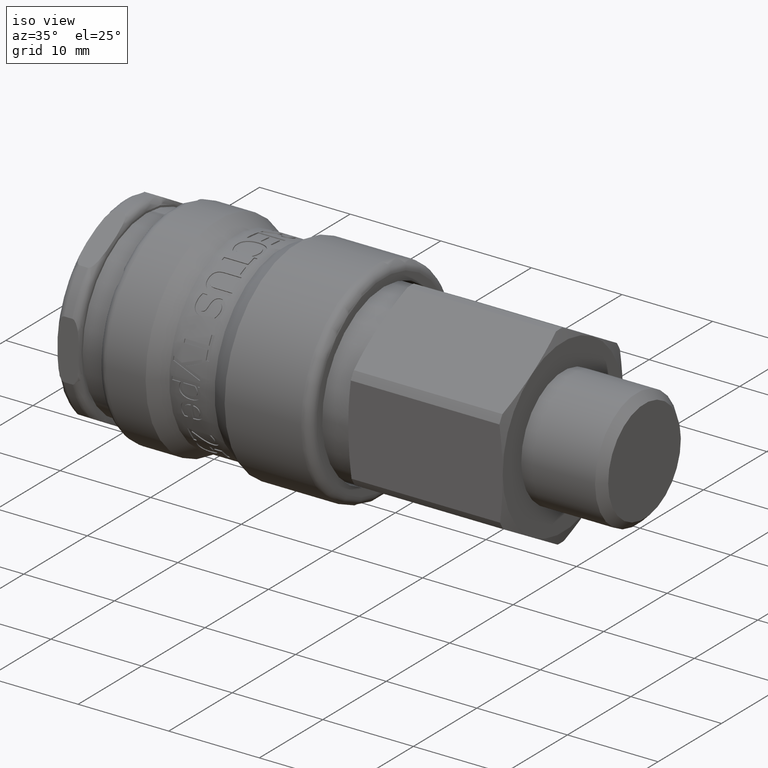
[diagram: clean part render]
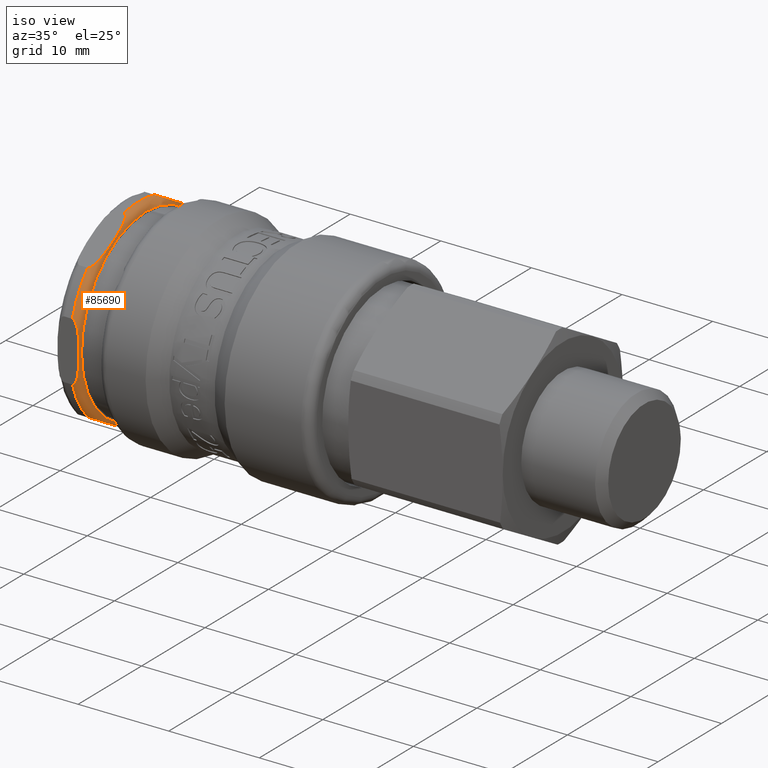
[diagram: same view with one face highlighted and labeled with its STEP entity id]
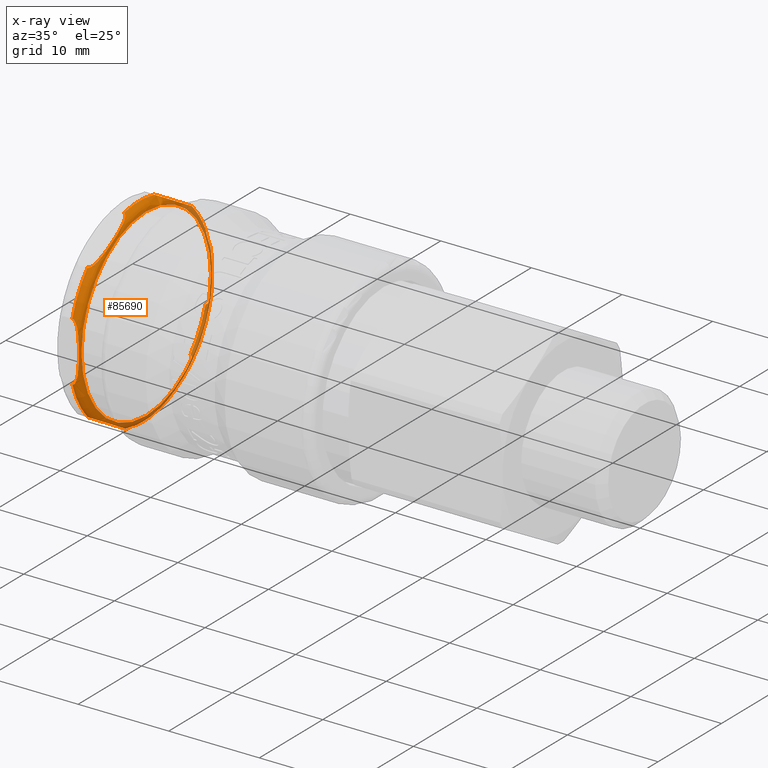
[diagram: x-ray of the same camera — body ghosted, the highlighted face saturated]
A machine part, iso view. The second image highlights one B-rep face of the part: STEP entity #85690.
The next image is the same camera in x-ray: the body ghosted, the highlighted face saturated — about 25% of this face is hidden behind the body in this view.
In plain terms, the highlighted toroidal blend (fillet) surface has major radius 10.2 mm and minor (blend) radius 0.8 mm.
Its self-contained STEP definition (entity closure, byte-faithful):
#85016=CARTESIAN_POINT('',(2.499999999999999,10.199999999999999,-2.498279E-015));
#85017=VERTEX_POINT('',#85016);
#85018=CARTESIAN_POINT('',(2.499999999999999,0.0,0.0));
#85019=DIRECTION('',(-1.0,0.0,0.0));
#85020=DIRECTION('',(0.0,-1.0,0.0));
#85021=AXIS2_PLACEMENT_3D('',#85018,#85019,#85020);
#85022=CIRCLE('',#85021,10.199999999999999);
#85023=EDGE_CURVE('',#85017,#85017,#85022,.T.);
#85038=CARTESIAN_POINT('',(1.699999999999999,2.410545827099858,-10.732626370812106));
#85039=VERTEX_POINT('',#85038);
#85046=CARTESIAN_POINT('',(1.699999999999999,-2.410545827099867,-10.732626370812106));
#85047=VERTEX_POINT('',#85046);
#85048=CARTESIAN_POINT('',(1.699999999999999,0.0,0.0));
#85049=DIRECTION('',(1.0,0.0,0.0));
#85050=DIRECTION('',(0.0,-1.0,0.0));
#85051=AXIS2_PLACEMENT_3D('',#85048,#85049,#85050);
#85052=CIRCLE('',#85051,11.0);
#85053=EDGE_CURVE('',#85047,#85039,#85052,.T.);
#85112=CARTESIAN_POINT('',(1.699999999999999,10.500000000000000,3.278719262151002));
#85113=VERTEX_POINT('',#85112);
#85120=CARTESIAN_POINT('',(1.699999999999999,10.500000000000000,-3.278719262151002));
#85121=VERTEX_POINT('',#85120);
#85122=CARTESIAN_POINT('',(1.699999999999999,10.500000000000000,-3.278719262151002));
#85123=CARTESIAN_POINT('',(1.722104467915269,10.500000000000000,-3.278719262151002));
#85124=CARTESIAN_POINT('',(1.748334382194516,10.500000000000000,-3.274771300712473));
#85125=CARTESIAN_POINT('',(1.793965826045355,10.500000000000000,-3.261374599091508));
#85126=CARTESIAN_POINT('',(1.821634946150615,10.500000000000000,-3.248439310874967));
#85127=CARTESIAN_POINT('',(1.910997444381833,10.500000000000000,-3.193187925023128));
#85128=CARTESIAN_POINT('',(1.972605022011147,10.500000000000000,-3.120173886764250));
#85129=CARTESIAN_POINT('',(2.103238507919768,10.500000000000000,-2.919047819138348));
#85130=CARTESIAN_POINT('',(2.169564088821498,10.500000000000000,-2.738591631614820));
#85131=CARTESIAN_POINT('',(2.325754557692284,10.500000000000000,-2.191493105213070));
#85132=CARTESIAN_POINT('',(2.373967945911439,10.499999999999998,-1.749150668261575));
#85133=CARTESIAN_POINT('',(2.433358688630658,10.499999999999998,-0.857870751619870));
#85134=CARTESIAN_POINT('',(2.441619848709565,10.500000000000000,-0.408741346034070));
#85135=CARTESIAN_POINT('',(2.441619848709565,10.500000000000000,0.408741346034070));
#85136=CARTESIAN_POINT('',(2.433358688630658,10.499999999999998,0.857870751619870));
#85137=CARTESIAN_POINT('',(2.373967945911439,10.499999999999998,1.749150668261575));
#85138=CARTESIAN_POINT('',(2.325754557692284,10.500000000000000,2.191493105213070));
#85139=CARTESIAN_POINT('',(2.169564088821498,10.500000000000000,2.738591631614820));
#85140=CARTESIAN_POINT('',(2.103238507919768,10.500000000000000,2.919047819138348));
#85141=CARTESIAN_POINT('',(1.972605022011147,10.500000000000000,3.120173886764250));
#85142=CARTESIAN_POINT('',(1.910997444381833,10.500000000000000,3.193187925023128));
#85143=CARTESIAN_POINT('',(1.821634946150615,10.500000000000000,3.248439310874967));
#85144=CARTESIAN_POINT('',(1.793965826045355,10.500000000000000,3.261374599091508));
#85145=CARTESIAN_POINT('',(1.748334382194516,10.500000000000000,3.274771300712473));
#85146=CARTESIAN_POINT('',(1.722104467915269,10.500000000000000,3.278719262151002));
#85147=CARTESIAN_POINT('',(1.699999999999999,10.500000000000000,3.278719262151002));
#85148=B_SPLINE_CURVE_WITH_KNOTS('',3,(#85122,#85123,#85124,#85125,#85126,#85127,#85128,#85129,#85130,#85131,#85132,#85133,#85134,#85135,#85136,#85137,#85138,#85139,#85140,#85141,#85142,#85143,#85144,#85145,#85146,#85147),.UNSPECIFIED.,.F.,.U.,(4,2,2,2,2,2,2,2,2,2,2,2,4),(0.331459991565857,0.338091331940438,0.345727192601835,0.369610428621349,0.417675175511273,0.540297579321494,0.662919983131715,0.785542386941936,0.908164790752157,0.956229537642080,0.980112773661594,0.987748634322991,0.994379974697572),.UNSPECIFIED.);
#85149=EDGE_CURVE('',#85121,#85113,#85148,.T.);
#85387=CARTESIAN_POINT('',(1.699999999999999,-8.089454172900142,-7.453907108661100));
#85388=VERTEX_POINT('',#85387);
#85395=CARTESIAN_POINT('',(1.699999999999999,-10.500000000000000,-3.278719262151001));
#85396=VERTEX_POINT('',#85395);
#85397=CARTESIAN_POINT('',(1.699999999999999,0.0,0.0));
#85398=DIRECTION('',(1.0,0.0,0.0));
#85399=DIRECTION('',(0.0,-1.0,0.0));
#85400=AXIS2_PLACEMENT_3D('',#85397,#85398,#85399);
#85401=CIRCLE('',#85400,11.0);
#85402=EDGE_CURVE('',#85396,#85388,#85401,.T.);
#85419=CARTESIAN_POINT('',(1.699999999999999,-10.500000000000000,3.278719262151004));
#85420=VERTEX_POINT('',#85419);
#85427=CARTESIAN_POINT('',(1.699999999999999,-8.089454172900137,7.453907108661106));
#85428=VERTEX_POINT('',#85427);
#85429=CARTESIAN_POINT('',(1.699999999999999,0.0,0.0));
#85430=DIRECTION('',(1.0,0.0,0.0));
#85431=DIRECTION('',(0.0,-1.0,0.0));
#85432=AXIS2_PLACEMENT_3D('',#85429,#85430,#85431);
#85433=CIRCLE('',#85432,11.0);
#85434=EDGE_CURVE('',#85428,#85420,#85433,.T.);
#85451=CARTESIAN_POINT('',(1.699999999999999,-2.410545827099857,10.732626370812108));
#85452=VERTEX_POINT('',#85451);
#85459=CARTESIAN_POINT('',(1.699999999999999,2.410545827099862,10.732626370812106));
#85460=VERTEX_POINT('',#85459);
#85461=CARTESIAN_POINT('',(1.699999999999999,0.0,0.0));
#85462=DIRECTION('',(1.0,0.0,0.0));
#85463=DIRECTION('',(0.0,-1.0,0.0));
#85464=AXIS2_PLACEMENT_3D('',#85461,#85462,#85463);
#85465=CIRCLE('',#85464,11.0);
#85466=EDGE_CURVE('',#85460,#85452,#85465,.T.);
#85483=CARTESIAN_POINT('',(1.699999999999999,8.089454172900140,7.453907108661104));
#85484=VERTEX_POINT('',#85483);
#85491=CARTESIAN_POINT('',(1.699999999999999,0.0,0.0));
#85492=DIRECTION('',(1.0,0.0,0.0));
#85493=DIRECTION('',(0.0,-1.0,0.0));
#85494=AXIS2_PLACEMENT_3D('',#85491,#85492,#85493);
#85495=CIRCLE('',#85494,11.0);
#85496=EDGE_CURVE('',#85113,#85484,#85495,.T.);
#85508=CARTESIAN_POINT('',(1.699999999999999,8.089454172900126,-7.453907108661117));
#85509=VERTEX_POINT('',#85508);
#85518=CARTESIAN_POINT('',(1.699999999999999,0.0,0.0));
#85519=DIRECTION('',(1.0,0.0,0.0));
#85520=DIRECTION('',(0.0,-1.0,0.0));
#85521=AXIS2_PLACEMENT_3D('',#85518,#85519,#85520);
#85522=CIRCLE('',#85521,11.0);
#85523=EDGE_CURVE('',#85509,#85121,#85522,.T.);
#85528=CARTESIAN_POINT('',(1.699999999999999,0.0,0.0));
#85529=DIRECTION('',(1.0,0.0,0.0));
#85530=DIRECTION('',(0.0,0.0,-1.0));
#85531=AXIS2_PLACEMENT_3D('',#85528,#85529,#85530);
#85532=TOROIDAL_SURFACE('',#85531,10.199999999999999,0.800000000000000);
#85533=CARTESIAN_POINT('',(1.699999999999999,2.410545827099859,-10.732626370812108));
#85534=CARTESIAN_POINT('',(1.722104467915272,2.410545827099859,-10.732626370812108));
#85535=CARTESIAN_POINT('',(1.748334382194521,2.413964861998794,-10.730652390092839));
#85536=CARTESIAN_POINT('',(1.793965826045359,2.425566745929470,-10.723954039282354));
#85537=CARTESIAN_POINT('',(1.821634946150620,2.436769034130256,-10.717486395174094));
#85538=CARTESIAN_POINT('',(1.910997444381834,2.484618137872242,-10.689860702248176));
#85539=CARTESIAN_POINT('',(1.972605022011146,2.547850149837321,-10.653353683118736));
#85540=CARTESIAN_POINT('',(2.103238507919766,2.722030433764616,-10.552790649305786));
#85541=CARTESIAN_POINT('',(2.169564088821497,2.878310076430076,-10.462562555544023));
#85542=CARTESIAN_POINT('',(2.325754557692285,3.352111298667022,-10.189013292343150));
#85543=CARTESIAN_POINT('',(2.373967945911438,3.735191086238936,-9.967842073867402));
#85544=CARTESIAN_POINT('',(2.433358688630657,4.507062135933531,-9.522202115546548));
#85545=CARTESIAN_POINT('',(2.441619848709564,4.896019610757442,-9.297637412753648));
#85546=CARTESIAN_POINT('',(2.441619848709564,5.603980389242546,-8.888896066719578));
#85547=CARTESIAN_POINT('',(2.433358688630656,5.992937864066454,-8.664331363926678));
#85548=CARTESIAN_POINT('',(2.373967945911437,6.764808913761049,-8.218691405605824));
#85549=CARTESIAN_POINT('',(2.325754557692285,7.147888701332963,-7.997520187130074));
#85550=CARTESIAN_POINT('',(2.169564088821497,7.621689923569909,-7.723970923929201));
#85551=CARTESIAN_POINT('',(2.103238507919766,7.777969566235369,-7.633742830167440));
#85552=CARTESIAN_POINT('',(1.972605022011146,7.952149850162664,-7.533179796354490));
#85553=CARTESIAN_POINT('',(1.910997444381834,8.015381862127743,-7.496672777225050));
#85554=CARTESIAN_POINT('',(1.821634946150620,8.063230965869728,-7.469047084299132));
#85555=CARTESIAN_POINT('',(1.793965826045359,8.074433254070515,-7.462579440190869));
#85556=CARTESIAN_POINT('',(1.748334382194521,8.086035138001190,-7.455881089380386));
#85557=CARTESIAN_POINT('',(1.722104467915272,8.089454172900126,-7.453907108661117));
#85558=CARTESIAN_POINT('',(1.699999999999999,8.089454172900126,-7.453907108661117));
#85559=B_SPLINE_CURVE_WITH_KNOTS('',3,(#85533,#85534,#85535,#85536,#85537,#85538,#85539,#85540,#85541,#85542,#85543,#85544,#85545,#85546,#85547,#85548,#85549,#85550,#85551,#85552,#85553,#85554,#85555,#85556,#85557,#85558),.UNSPECIFIED.,.F.,.U.,(4,2,2,2,2,2,2,2,2,2,2,2,4),(0.331459991565857,0.338091331940439,0.345727192601834,0.369610428621348,0.417675175511271,0.540297579321493,0.662919983131714,0.785542386941936,0.908164790752157,0.956229537642080,0.980112773661593,0.987748634322989,0.994379974697571),.UNSPECIFIED.);
#85560=EDGE_CURVE('',#85039,#85509,#85559,.T.);
#85561=ORIENTED_EDGE('',*,*,#85560,.T.);
#85562=ORIENTED_EDGE('',*,*,#85523,.T.);
#85563=ORIENTED_EDGE('',*,*,#85149,.T.);
#85564=ORIENTED_EDGE('',*,*,#85496,.T.);
#85565=CARTESIAN_POINT('',(1.699999999999999,8.089454172900140,7.453907108661104));
#85566=CARTESIAN_POINT('',(1.722104467915269,8.089454172900140,7.453907108661104));
#85567=CARTESIAN_POINT('',(1.748334382194516,8.086035138001211,7.455881089380369));
#85568=CARTESIAN_POINT('',(1.793965826045355,8.074433254070536,7.462579440190851));
#85569=CARTESIAN_POINT('',(1.821634946150615,8.063230965869737,7.469047084299120));
#85570=CARTESIAN_POINT('',(1.910997444381833,8.015381862127750,7.496672777225040));
#85571=CARTESIAN_POINT('',(1.972605022011147,7.952149850162672,7.533179796354479));
#85572=CARTESIAN_POINT('',(2.103238507919768,7.777969566235374,7.633742830167431));
#85573=CARTESIAN_POINT('',(2.169564088821498,7.621689923569911,7.723970923929196));
#85574=CARTESIAN_POINT('',(2.325754557692285,7.147888701332964,7.997520187130069));
#85575=CARTESIAN_POINT('',(2.373967945911440,6.764808913761052,8.218691405605817));
#85576=CARTESIAN_POINT('',(2.433358688630658,5.992937864066459,8.664331363926669));
#85577=CARTESIAN_POINT('',(2.441619848709565,5.603980389242552,8.888896066719569));
#85578=CARTESIAN_POINT('',(2.441619848709565,4.896019610757451,9.297637412753641));
#85579=CARTESIAN_POINT('',(2.433358688630658,4.507062135933543,9.522202115546541));
#85580=CARTESIAN_POINT('',(2.373967945911440,3.735191086238950,9.967842073867393));
#85581=CARTESIAN_POINT('',(2.325754557692284,3.352111298667039,10.189013292343141));
#85582=CARTESIAN_POINT('',(2.169564088821499,2.878310076430092,10.462562555544014));
#85583=CARTESIAN_POINT('',(2.103238507919768,2.722030433764629,10.552790649305781));
#85584=CARTESIAN_POINT('',(1.972605022011147,2.547850149837331,10.653353683118731));
#85585=CARTESIAN_POINT('',(1.910997444381833,2.484618137872253,10.689860702248170));
#85586=CARTESIAN_POINT('',(1.821634946150615,2.436769034130264,10.717486395174090));
#85587=CARTESIAN_POINT('',(1.793965826045355,2.425566745929467,10.723954039282360));
#85588=CARTESIAN_POINT('',(1.748334382194516,2.413964861998791,10.730652390092841));
#85589=CARTESIAN_POINT('',(1.722104467915269,2.410545827099863,10.732626370812106));
#85590=CARTESIAN_POINT('',(1.699999999999999,2.410545827099863,10.732626370812106));
#85591=B_SPLINE_CURVE_WITH_KNOTS('',3,(#85565,#85566,#85567,#85568,#85569,#85570,#85571,#85572,#85573,#85574,#85575,#85576,#85577,#85578,#85579,#85580,#85581,#85582,#85583,#85584,#85585,#85586,#85587,#85588,#85589,#85590),.UNSPECIFIED.,.F.,.U.,(4,2,2,2,2,2,2,2,2,2,2,2,4),(0.331459991565857,0.338091331940439,0.345727192601835,0.369610428621349,0.417675175511273,0.540297579321494,0.662919983131715,0.785542386941936,0.908164790752157,0.956229537642080,0.980112773661594,0.987748634322991,0.994379974697572),.UNSPECIFIED.);
#85592=EDGE_CURVE('',#85484,#85460,#85591,.T.);
#85593=ORIENTED_EDGE('',*,*,#85592,.T.);
#85594=ORIENTED_EDGE('',*,*,#85466,.T.);
#85595=CARTESIAN_POINT('',(1.699999999999999,-2.410545827099857,10.732626370812108));
#85596=CARTESIAN_POINT('',(1.722104467915269,-2.410545827099857,10.732626370812108));
#85597=CARTESIAN_POINT('',(1.748334382194515,-2.413964861998786,10.730652390092841));
#85598=CARTESIAN_POINT('',(1.793965826045354,-2.425566745929461,10.723954039282360));
#85599=CARTESIAN_POINT('',(1.821634946150614,-2.436769034130260,10.717486395174090));
#85600=CARTESIAN_POINT('',(1.910997444381833,-2.484618137872248,10.689860702248170));
#85601=CARTESIAN_POINT('',(1.972605022011147,-2.547850149837326,10.653353683118731));
#85602=CARTESIAN_POINT('',(2.103238507919767,-2.722030433764624,10.552790649305781));
#85603=CARTESIAN_POINT('',(2.169564088821499,-2.878310076430087,10.462562555544018));
#85604=CARTESIAN_POINT('',(2.325754557692285,-3.352111298667035,10.189013292343143));
#85605=CARTESIAN_POINT('',(2.373967945911440,-3.735191086238946,9.967842073867395));
#85606=CARTESIAN_POINT('',(2.433358688630658,-4.507062135933539,9.522202115546541));
#85607=CARTESIAN_POINT('',(2.441619848709565,-4.896019610757447,9.297637412753643));
#85608=CARTESIAN_POINT('',(2.441619848709565,-5.603980389242549,8.888896066719575));
#85609=CARTESIAN_POINT('',(2.433358688630658,-5.992937864066454,8.664331363926673));
#85610=CARTESIAN_POINT('',(2.373967945911440,-6.764808913761047,8.218691405605821));
#85611=CARTESIAN_POINT('',(2.325754557692284,-7.147888701332958,7.997520187130071));
#85612=CARTESIAN_POINT('',(2.169564088821499,-7.621689923569907,7.723970923929198));
#85613=CARTESIAN_POINT('',(2.103238507919768,-7.777969566235370,7.633742830167433));
#85614=CARTESIAN_POINT('',(1.972605022011147,-7.952149850162669,7.533179796354482));
#85615=CARTESIAN_POINT('',(1.910997444381833,-8.015381862127747,7.496672777225044));
#85616=CARTESIAN_POINT('',(1.821634946150614,-8.063230965869735,7.469047084299126));
#85617=CARTESIAN_POINT('',(1.793965826045354,-8.074433254070533,7.462579440190854));
#85618=CARTESIAN_POINT('',(1.748334382194515,-8.086035138001208,7.455881089380371));
#85619=CARTESIAN_POINT('',(1.722104467915269,-8.089454172900137,7.453907108661106));
#85620=CARTESIAN_POINT('',(1.699999999999999,-8.089454172900137,7.453907108661106));
#85621=B_SPLINE_CURVE_WITH_KNOTS('',3,(#85595,#85596,#85597,#85598,#85599,#85600,#85601,#85602,#85603,#85604,#85605,#85606,#85607,#85608,#85609,#85610,#85611,#85612,#85613,#85614,#85615,#85616,#85617,#85618,#85619,#85620),.UNSPECIFIED.,.F.,.U.,(4,2,2,2,2,2,2,2,2,2,2,2,4),(0.331459991565857,0.338091331940438,0.345727192601835,0.369610428621349,0.417675175511273,0.540297579321494,0.662919983131715,0.785542386941936,0.908164790752157,0.956229537642080,0.980112773661594,0.987748634322991,0.994379974697572),.UNSPECIFIED.);
#85622=EDGE_CURVE('',#85452,#85428,#85621,.T.);
#85623=ORIENTED_EDGE('',*,*,#85622,.T.);
#85624=ORIENTED_EDGE('',*,*,#85434,.T.);
#85625=CARTESIAN_POINT('',(1.699999999999999,-10.500000000000000,3.278719262151004));
#85626=CARTESIAN_POINT('',(1.722104467915269,-10.500000000000000,3.278719262151004));
#85627=CARTESIAN_POINT('',(1.748334382194516,-10.500000000000000,3.274771300712475));
#85628=CARTESIAN_POINT('',(1.793965826045355,-10.500000000000000,3.261374599091510));
#85629=CARTESIAN_POINT('',(1.821634946150615,-10.500000000000000,3.248439310874969));
#85630=CARTESIAN_POINT('',(1.910997444381833,-10.500000000000000,3.193187925023130));
#85631=CARTESIAN_POINT('',(1.972605022011147,-10.500000000000000,3.120173886764252));
#85632=CARTESIAN_POINT('',(2.103238507919768,-10.500000000000000,2.919047819138350));
#85633=CARTESIAN_POINT('',(2.169564088821499,-10.500000000000000,2.738591631614822));
#85634=CARTESIAN_POINT('',(2.325754557692284,-10.500000000000000,2.191493105213072));
#85635=CARTESIAN_POINT('',(2.373967945911439,-10.499999999999998,1.749150668261577));
#85636=CARTESIAN_POINT('',(2.433358688630658,-10.499999999999998,0.857870751619872));
#85637=CARTESIAN_POINT('',(2.441619848709565,-10.500000000000000,0.408741346034072));
#85638=CARTESIAN_POINT('',(2.441619848709565,-10.500000000000000,-0.408741346034068));
#85639=CARTESIAN_POINT('',(2.433358688630658,-10.499999999999998,-0.857870751619868));
#85640=CARTESIAN_POINT('',(2.373967945911439,-10.499999999999998,-1.749150668261573));
#85641=CARTESIAN_POINT('',(2.325754557692284,-10.500000000000000,-2.191493105213068));
#85642=CARTESIAN_POINT('',(2.169564088821499,-10.500000000000000,-2.738591631614819));
#85643=CARTESIAN_POINT('',(2.103238507919768,-10.500000000000000,-2.919047819138346));
#85644=CARTESIAN_POINT('',(1.972605022011147,-10.500000000000000,-3.120173886764248));
#85645=CARTESIAN_POINT('',(1.910997444381833,-10.500000000000000,-3.193187925023127));
#85646=CARTESIAN_POINT('',(1.821634946150615,-10.500000000000000,-3.248439310874965));
#85647=CARTESIAN_POINT('',(1.793965826045355,-10.500000000000000,-3.261374599091507));
#85648=CARTESIAN_POINT('',(1.748334382194516,-10.500000000000000,-3.274771300712471));
#85649=CARTESIAN_POINT('',(1.722104467915269,-10.500000000000000,-3.278719262151001));
#85650=CARTESIAN_POINT('',(1.699999999999999,-10.500000000000000,-3.278719262151001));
#85651=B_SPLINE_CURVE_WITH_KNOTS('',3,(#85625,#85626,#85627,#85628,#85629,#85630,#85631,#85632,#85633,#85634,#85635,#85636,#85637,#85638,#85639,#85640,#85641,#85642,#85643,#85644,#85645,#85646,#85647,#85648,#85649,#85650),.UNSPECIFIED.,.F.,.U.,(4,2,2,2,2,2,2,2,2,2,2,2,4),(0.331459991565857,0.338091331940438,0.345727192601835,0.369610428621349,0.417675175511273,0.540297579321494,0.662919983131715,0.785542386941936,0.908164790752157,0.956229537642080,0.980112773661594,0.987748634322991,0.994379974697572),.UNSPECIFIED.);
#85652=EDGE_CURVE('',#85420,#85396,#85651,.T.);
#85653=ORIENTED_EDGE('',*,*,#85652,.T.);
#85654=ORIENTED_EDGE('',*,*,#85402,.T.);
#85655=CARTESIAN_POINT('',(1.699999999999999,-8.089454172900142,-7.453907108661100));
#85656=CARTESIAN_POINT('',(1.722104467915269,-8.089454172900142,-7.453907108661100));
#85657=CARTESIAN_POINT('',(1.748334382194516,-8.086035138001215,-7.455881089380365));
#85658=CARTESIAN_POINT('',(1.793965826045355,-8.074433254070538,-7.462579440190847));
#85659=CARTESIAN_POINT('',(1.821634946150615,-8.063230965869741,-7.469047084299119));
#85660=CARTESIAN_POINT('',(1.910997444381833,-8.015381862127754,-7.496672777225037));
#85661=CARTESIAN_POINT('',(1.972605022011147,-7.952149850162675,-7.533179796354476));
#85662=CARTESIAN_POINT('',(2.103238507919768,-7.777969566235377,-7.633742830167428));
#85663=CARTESIAN_POINT('',(2.169564088821498,-7.621689923569913,-7.723970923929191));
#85664=CARTESIAN_POINT('',(2.325754557692285,-7.147888701332966,-7.997520187130068));
#85665=CARTESIAN_POINT('',(2.373967945911440,-6.764808913761055,-8.218691405605815));
#85666=CARTESIAN_POINT('',(2.433358688630658,-5.992937864066461,-8.664331363926667));
#85667=CARTESIAN_POINT('',(2.441619848709565,-5.603980389242556,-8.888896066719568));
#85668=CARTESIAN_POINT('',(2.441619848709565,-4.896019610757454,-9.297637412753639));
#85669=CARTESIAN_POINT('',(2.433358688630658,-4.507062135933547,-9.522202115546538));
#85670=CARTESIAN_POINT('',(2.373967945911440,-3.735191086238954,-9.967842073867391));
#85671=CARTESIAN_POINT('',(2.325754557692285,-3.352111298667043,-10.189013292343141));
#85672=CARTESIAN_POINT('',(2.169564088821498,-2.878310076430096,-10.462562555544014));
#85673=CARTESIAN_POINT('',(2.103238507919768,-2.722030433764632,-10.552790649305779));
#85674=CARTESIAN_POINT('',(1.972605022011147,-2.547850149837335,-10.653353683118729));
#85675=CARTESIAN_POINT('',(1.910997444381833,-2.484618137872257,-10.689860702248168));
#85676=CARTESIAN_POINT('',(1.821634946150615,-2.436769034130268,-10.717486395174088));
#85677=CARTESIAN_POINT('',(1.793965826045355,-2.425566745929471,-10.723954039282360));
#85678=CARTESIAN_POINT('',(1.748334382194516,-2.413964861998795,-10.730652390092841));
#85679=CARTESIAN_POINT('',(1.722104467915269,-2.410545827099866,-10.732626370812106));
#85680=CARTESIAN_POINT('',(1.699999999999999,-2.410545827099866,-10.732626370812106));
#85681=B_SPLINE_CURVE_WITH_KNOTS('',3,(#85655,#85656,#85657,#85658,#85659,#85660,#85661,#85662,#85663,#85664,#85665,#85666,#85667,#85668,#85669,#85670,#85671,#85672,#85673,#85674,#85675,#85676,#85677,#85678,#85679,#85680),.UNSPECIFIED.,.F.,.U.,(4,2,2,2,2,2,2,2,2,2,2,2,4),(0.331459991565857,0.338091331940438,0.345727192601835,0.369610428621349,0.417675175511273,0.540297579321494,0.662919983131715,0.785542386941936,0.908164790752157,0.956229537642080,0.980112773661594,0.987748634322991,0.994379974697572),.UNSPECIFIED.);
#85682=EDGE_CURVE('',#85388,#85047,#85681,.T.);
#85683=ORIENTED_EDGE('',*,*,#85682,.T.);
#85684=ORIENTED_EDGE('',*,*,#85053,.T.);
#85685=EDGE_LOOP('',(#85561,#85562,#85563,#85564,#85593,#85594,#85623,#85624,#85653,#85654,#85683,#85684));
#85686=FACE_OUTER_BOUND('',#85685,.T.);
#85687=ORIENTED_EDGE('',*,*,#85023,.T.);
#85688=EDGE_LOOP('',(#85687));
#85689=FACE_BOUND('',#85688,.T.);
#85690=ADVANCED_FACE('',(#85686,#85689),#85532,.T.);